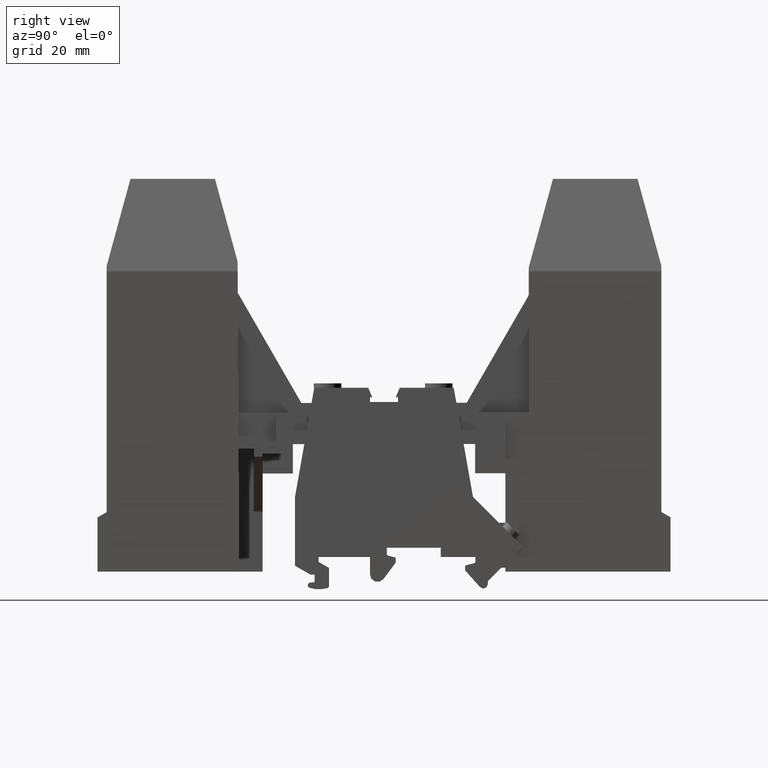
[diagram: clean part render]
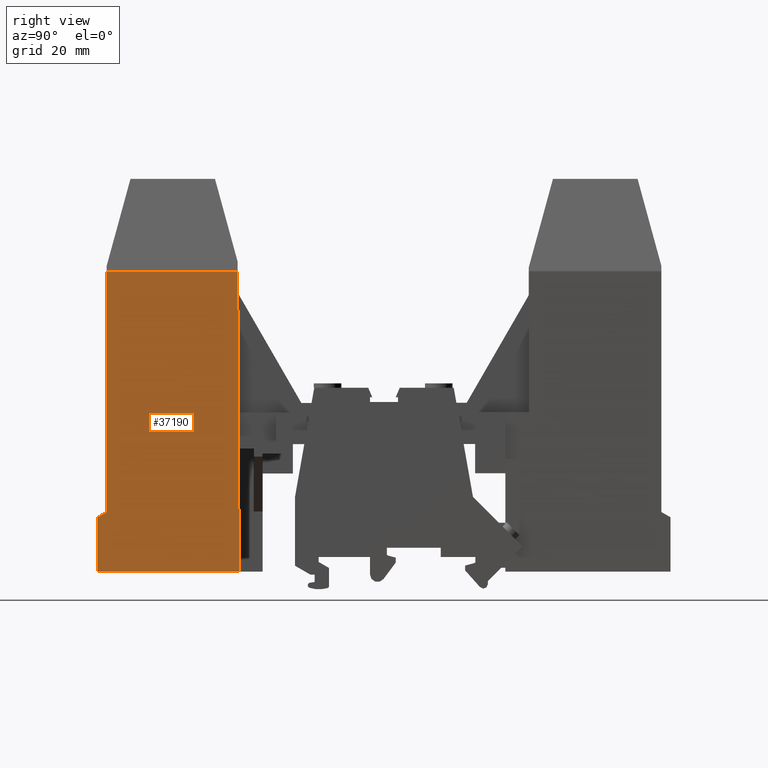
[diagram: same view with one face highlighted and labeled with its STEP entity id]
A machine part, right view. The second image highlights one B-rep face of the part: STEP entity #37190.
In plain terms, the highlighted planar face has unit normal (-1, -0, -0.0052).
Its self-contained STEP definition (entity closure, byte-faithful):
#13350=CARTESIAN_POINT('',(-104.793064126343,2484.3128477958,
712.876324217447));
#13360=CARTESIAN_POINT('',(-112.084978014362,1091.67260675453,
-709.459879524685));
#13370=CARTESIAN_POINT('',(-125.599481714809,-1594.90720913272,
1804.94025607115));
#13380=CARTESIAN_POINT('',(-118.376343396556,-215.402014325989,
-1800.23857394296));
#13390=B_SPLINE_SURFACE_WITH_KNOTS('',1,1,((#13350,#13370),(#13360,
#13380)),.UNSPECIFIED.,.F.,.F.,.F.,(2,2),(2,2),(-39.7771442341803,
40.7771442341803),(-105.024768864429,106.024768864429),.UNSPECIFIED.);
#15080=CARTESIAN_POINT('',(-83.5756793995085,399.276938378274,
-14.350146805803));
#15090=VERTEX_POINT('',#15080);
#15120=CARTESIAN_POINT('',(0.,399.276938378274,-14.350146805803));
#15130=DIRECTION('',(1.,1.16578705234462E-17,0.));
#15140=VECTOR('',#15130,1.);
#15150=LINE('',#15120,#15140);
#15160=CARTESIAN_POINT('',(-115.425429708724,399.276938378274,
-14.350146805803));
#15170=VERTEX_POINT('',#15160);
#15180=EDGE_CURVE('',#15170,#15090,#15150,.T.);
#31750=CARTESIAN_POINT('',(-192.565572863859,412.463773926208,
-14.2811000653475));
#31760=DIRECTION('',(6.10401884121367E-20,-0.00523596383141959,
0.999986292247427));
#31770=DIRECTION('',(1.,1.16578705234462E-17,1.20370621524202E-35));
#31780=AXIS2_PLACEMENT_3D('',#31750,#31760,#31770);
#31790=PLANE('',#31780);
#31800=CARTESIAN_POINT('',(-115.425429708724,399.276938378274,
-14.3501468058029));
#31810=CARTESIAN_POINT('',(-115.397128358722,404.903999292603,
-14.3206833145001));
#31820=CARTESIAN_POINT('',(-115.368827006922,410.531060206923,
-14.2912198231975));
#31830=CARTESIAN_POINT('',(-115.340525653293,416.158121121234,
-14.2617563318947));
#31840=CARTESIAN_POINT('',(-115.312224299664,421.785182035545,
-14.2322928405919));
#31850=CARTESIAN_POINT('',(-115.283922944207,427.412242949847,
-14.2028293492891));
#31860=CARTESIAN_POINT('',(-115.255621586891,433.039303864139,
-14.1733658579864));
#31870=CARTESIAN_POINT('',(-115.227320229575,438.666364778431,
-14.1439023666837));
#31880=CARTESIAN_POINT('',(-115.1990188704,444.293425692714,
-14.114438875381));
#31890=CARTESIAN_POINT('',(-115.170717509336,449.920486606988,
-14.0849753840784));
#31900=CARTESIAN_POINT('',(-115.142416148271,455.547547521261,
-14.0555118927758));
#31910=CARTESIAN_POINT('',(-115.114114785317,461.174608435525,
-14.0260484014732));
#31920=CARTESIAN_POINT('',(-115.085813420442,466.801669349779,
-13.9965849101708));
#31930=B_SPLINE_CURVE_WITH_KNOTS('',3,(#31800,#31810,#31820,#31830,
#31840,#31850,#31860,#31870,#31880,#31890,#31900,#31910,#31920),
.UNSPECIFIED.,.F.,.F.,(4,3,3,3,4),(0.,16.8816276577738,33.7632553155478,
50.6448829733217,67.5265106310955),.UNSPECIFIED.);
#31940=SURFACE_CURVE('',#31930,(#13390,#31790),.CURVE_3D.);
#31950=CARTESIAN_POINT('',(-115.085813420442,466.801669349769,
-13.9965849101709));
#31960=VERTEX_POINT('',#31950);
#31970=EDGE_CURVE('',#15170,#31960,#31940,.T.);
#33280=CARTESIAN_POINT('',(0.,466.801669349769,-13.9965849101709));
#33290=DIRECTION('',(-1.,-1.16578705234462E-17,0.));
#33300=VECTOR('',#33290,1.);
#33310=LINE('',#33280,#33300);
#33320=CARTESIAN_POINT('',(-85.6256793995085,466.801669349769,
-13.9965849101709));
#33330=VERTEX_POINT('',#33320);
#33340=EDGE_CURVE('',#33330,#31960,#33310,.T.);
#33820=CARTESIAN_POINT('',(-85.6256793995085,0.,-16.4407750716866));
#33830=DIRECTION('',(0.,-0.999986292247427,-0.00523596383141959));
#33840=VECTOR('',#33830,1.);
#33850=LINE('',#33820,#33840);
#33860=CARTESIAN_POINT('',(-85.6256793995085,412.638040924906,
-14.2801875971374));
#33870=VERTEX_POINT('',#33860);
#33880=EDGE_CURVE('',#33330,#33870,#33850,.T.);
#36750=CARTESIAN_POINT('',(0.,363.727508149233,-14.5362848882446));
#36760=DIRECTION('',(-0.868320698366207,0.495996391212044,
0.00259705476468501));
#36770=VECTOR('',#36760,1.);
#36780=LINE('',#36750,#36770);
#36790=CARTESIAN_POINT('',(-83.5756793995086,411.467053519104,
-14.286318928888));
#36800=VERTEX_POINT('',#36790);
#36810=EDGE_CURVE('',#36800,#33870,#36780,.T.);
#37060=ORIENTED_EDGE('',*,*,#31970,.T.);
#37070=ORIENTED_EDGE('',*,*,#15180,.F.);
#37080=CARTESIAN_POINT('',(-83.5756793995086,0.,-16.4407750716866));
#37090=DIRECTION('',(-6.67868538251071E-17,-0.999986292247427,
-0.00523596383141959));
#37100=VECTOR('',#37090,1.);
#37110=LINE('',#37080,#37100);
#37120=EDGE_CURVE('',#36800,#15090,#37110,.T.);
#37130=ORIENTED_EDGE('',*,*,#37120,.T.);
#37140=ORIENTED_EDGE('',*,*,#36810,.F.);
#37150=ORIENTED_EDGE('',*,*,#33880,.T.);
#37160=ORIENTED_EDGE('',*,*,#33340,.F.);
#37170=EDGE_LOOP('',(#37160,#37150,#37140,#37130,#37070,#37060));
#37180=FACE_OUTER_BOUND('',#37170,.T.);
#37190=ADVANCED_FACE('',(#37180),#31790,.F.);